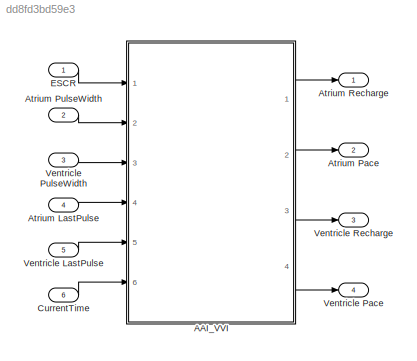
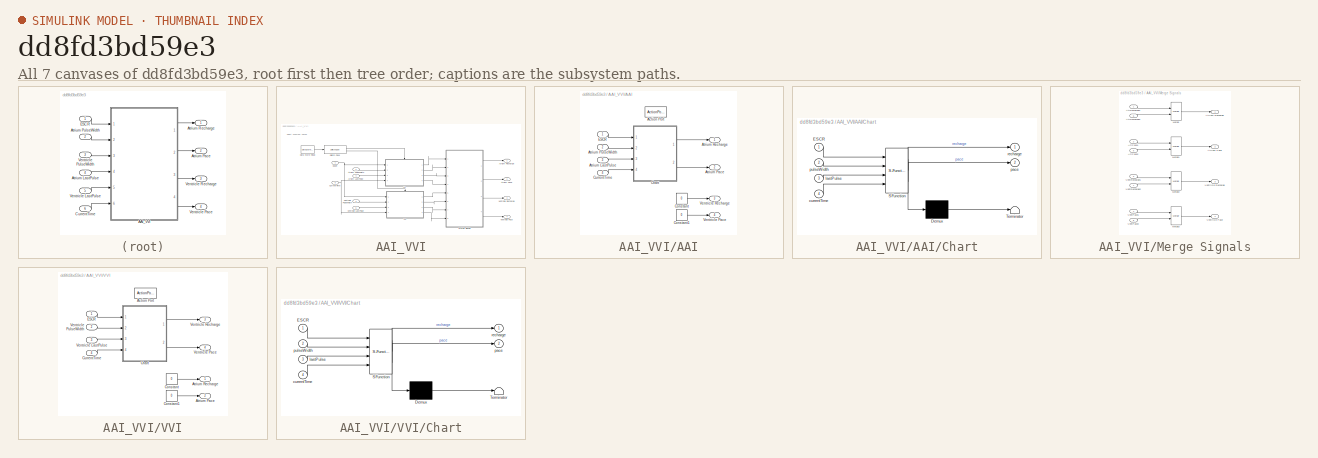
[diagram: thumbnail index - all 7 canvases of the model, root first then tree order]
MODEL slx_dd8fd3bd59e3
KIND model
CONFIG AbsTol = auto
CONFIG EnableMultiTasking = on
CONFIG FixedStep = 1e-3
CONFIG MaxStep = auto
CONFIG MinStep = auto
CONFIG RelTol = 1e-3
CONFIG SampleTimeConstraint = Unconstrained
CONFIG Solver = FixedStepAuto
CONFIG SolverName = FixedStepAuto
CONFIG StartTime = 0.0
CONFIG StopTime = 10.0
BLOCK [SubSystem] AAI_VVI
  Ports = [6, 4]
  RequestExecContextInheritance = off
BLOCK [SubSystem] AAI_VVI/AAI
  Ports = [4, 4, 0, 0, 0, 0, 0, 1]
  RequestExecContextInheritance = off
  VariantControl = ATR_PACING
BLOCK [ActionPort] AAI_VVI/AAI/Action Port
  ActionPortLabel = case [ 1 ]:
BLOCK [Inport] AAI_VVI/AAI/Atrium LastPulse
  Port = 3
BLOCK [Outport] AAI_VVI/AAI/Atrium Pace
  Port = 2
BLOCK [Inport] AAI_VVI/AAI/Atrium PulseWidth
  Port = 2
BLOCK [Outport] AAI_VVI/AAI/Atrium Recharge
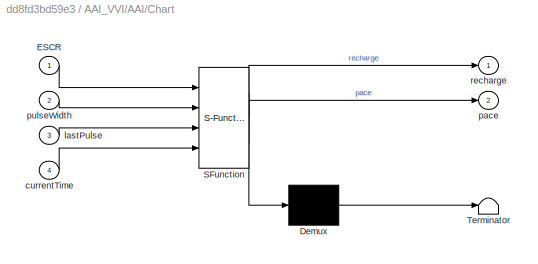
BLOCK [SubSystem] AAI_VVI/AAI/Chart
  ErrorFcn = Stateflow.Translate.translate
  PermitHierarchicalResolution = ExplicitOnly
  Ports = [4, 2]
  RequestExecContextInheritance = off
  SFBlockType = Chart
  TreatAsAtomicUnit = on
BLOCK [Demux] AAI_VVI/AAI/Chart/ Demux 
  Outputs = 1
  Ports = [1, 1]
BLOCK [S-Function] AAI_VVI/AAI/Chart/ SFunction 
  EnableBusSupport = on
  FunctionName = sf_sfun
  PortCounts = [4 3]
  Ports = [4, 3]
  SFcnIsStateOwnerBlock = off
  SFunctionDeploymentMode = off
  Tag = Stateflow S-Function 2
BLOCK [Terminator] AAI_VVI/AAI/Chart/ Terminator 
BLOCK [Inport] AAI_VVI/AAI/Chart/ESCR
BLOCK [Inport] AAI_VVI/AAI/Chart/currentTime
  Port = 4
BLOCK [Inport] AAI_VVI/AAI/Chart/lastPulse
  Port = 3
BLOCK [Outport] AAI_VVI/AAI/Chart/pace
  Port = 2
BLOCK [Inport] AAI_VVI/AAI/Chart/pulseWidth
  Port = 2
BLOCK [Outport] AAI_VVI/AAI/Chart/recharge
BLOCK [Constant] AAI_VVI/AAI/Constant
  Value = 0
BLOCK [Constant] AAI_VVI/AAI/Constant1
  OutDataTypeStr = boolean
  Value = 0
BLOCK [Inport] AAI_VVI/AAI/CurrentTime
  Port = 4
BLOCK [Inport] AAI_VVI/AAI/ESCR
BLOCK [Outport] AAI_VVI/AAI/Ventricle Pace
  Port = 4
BLOCK [Outport] AAI_VVI/AAI/Ventricle Recharge
  Port = 3
BLOCK [Inport] AAI_VVI/Atrium LastPulse
  Port = 4
BLOCK [Outport] AAI_VVI/Atrium Pace
  Port = 2
BLOCK [Inport] AAI_VVI/Atrium PulseWidth
  Port = 2
BLOCK [Outport] AAI_VVI/Atrium Recharge
BLOCK [Inport] AAI_VVI/CurrentTime
  Port = 6
BLOCK [DataStoreRead] AAI_VVI/Data Store Read
  DataStoreName = Paced
  Ports = [0, 1]
BLOCK [Inport] AAI_VVI/ESCR
BLOCK [SubSystem] AAI_VVI/Merge Signals
  Ports = [8, 4]
  RequestExecContextInheritance = off
BLOCK [Inport] AAI_VVI/Merge Signals/AtrPace1
  Port = 2
BLOCK [Inport] AAI_VVI/Merge Signals/AtrPace2
  Port = 6
BLOCK [Inport] AAI_VVI/Merge Signals/AtrRecharge1
BLOCK [Inport] AAI_VVI/Merge Signals/AtrRecharge2
  Port = 5
BLOCK [Outport] AAI_VVI/Merge Signals/Atrium Pace
  Port = 2
BLOCK [Outport] AAI_VVI/Merge Signals/Atrium Recharge
BLOCK [Merge] AAI_VVI/Merge Signals/Merge
  Ports = [2, 1]
BLOCK [Merge] AAI_VVI/Merge Signals/Merge1
  Ports = [2, 1]
BLOCK [Merge] AAI_VVI/Merge Signals/Merge2
  Ports = [2, 1]
BLOCK [Merge] AAI_VVI/Merge Signals/Merge3
  Ports = [2, 1]
BLOCK [Inport] AAI_VVI/Merge Signals/VentPace1
  Port = 4
BLOCK [Inport] AAI_VVI/Merge Signals/VentPace2
  Port = 8
BLOCK [Inport] AAI_VVI/Merge Signals/VentRecharge1
  Port = 3
BLOCK [Inport] AAI_VVI/Merge Signals/VentRecharge2
  Port = 7
BLOCK [Outport] AAI_VVI/Merge Signals/Ventricle Pace
  Port = 4
BLOCK [Outport] AAI_VVI/Merge Signals/Ventricle Recharge
  Port = 3
BLOCK [SwitchCase] AAI_VVI/Switch Case
  CaseConditions = {1,2}
  Ports = [1, 2]
  ShowDefaultCase = off
BLOCK [SubSystem] AAI_VVI/VVI
  Ports = [4, 4, 0, 0, 0, 0, 0, 1]
  RequestExecContextInheritance = off
  VariantControl = VENT_PACING
BLOCK [ActionPort] AAI_VVI/VVI/Action Port
  ActionPortLabel = case [ 2 ]:
BLOCK [Outport] AAI_VVI/VVI/Atrium Pace
  Port = 2
BLOCK [Outport] AAI_VVI/VVI/Atrium Recharge
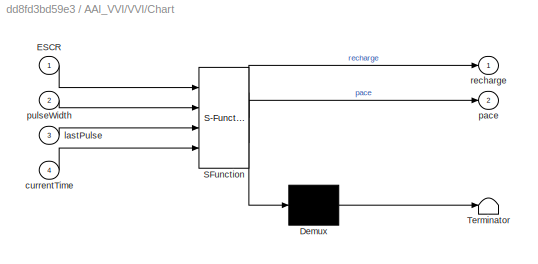
BLOCK [SubSystem] AAI_VVI/VVI/Chart
  ErrorFcn = Stateflow.Translate.translate
  PermitHierarchicalResolution = ExplicitOnly
  Ports = [4, 2]
  RequestExecContextInheritance = off
  SFBlockType = Chart
  TreatAsAtomicUnit = on
BLOCK [Demux] AAI_VVI/VVI/Chart/ Demux 
  Outputs = 1
  Ports = [1, 1]
BLOCK [S-Function] AAI_VVI/VVI/Chart/ SFunction 
  EnableBusSupport = on
  FunctionName = sf_sfun
  PortCounts = [4 3]
  Ports = [4, 3]
  SFcnIsStateOwnerBlock = off
  SFunctionDeploymentMode = off
  Tag = Stateflow S-Function 4
BLOCK [Terminator] AAI_VVI/VVI/Chart/ Terminator 
BLOCK [Inport] AAI_VVI/VVI/Chart/ESCR
BLOCK [Inport] AAI_VVI/VVI/Chart/currentTime
  Port = 4
BLOCK [Inport] AAI_VVI/VVI/Chart/lastPulse
  Port = 3
BLOCK [Outport] AAI_VVI/VVI/Chart/pace
  Port = 2
BLOCK [Inport] AAI_VVI/VVI/Chart/pulseWidth
  Port = 2
BLOCK [Outport] AAI_VVI/VVI/Chart/recharge
BLOCK [Constant] AAI_VVI/VVI/Constant
  Value = 0
BLOCK [Constant] AAI_VVI/VVI/Constant1
  OutDataTypeStr = boolean
  Value = 0
BLOCK [Inport] AAI_VVI/VVI/CurrentTime
  Port = 4
BLOCK [Inport] AAI_VVI/VVI/ESCR
BLOCK [Inport] AAI_VVI/VVI/Ventricle LastPulse
  Port = 3
BLOCK [Outport] AAI_VVI/VVI/Ventricle Pace
  Port = 4
BLOCK [Inport] AAI_VVI/VVI/Ventricle PulseWidth
  Port = 2
BLOCK [Outport] AAI_VVI/VVI/Ventricle Recharge
  Port = 3
BLOCK [Inport] AAI_VVI/Ventricle LastPulse
  Port = 5
BLOCK [Outport] AAI_VVI/Ventricle Pace
  Port = 4
BLOCK [Inport] AAI_VVI/Ventricle PulseWidth 
  Port = 3
BLOCK [Outport] AAI_VVI/Ventricle Recharge
  Port = 3
BLOCK [Inport] Atrium LastPulse
  Port = 4
BLOCK [Outport] Atrium Pace
  Port = 2
BLOCK [Inport] Atrium PulseWidth
  OutDataTypeStr = uint16
  Port = 2
BLOCK [Outport] Atrium Recharge
BLOCK [Inport] CurrentTime
  Port = 6
BLOCK [Inport] ESCR
  OutDataTypeStr = uint16
BLOCK [Inport] Ventricle LastPulse
  Port = 5
BLOCK [Outport] Ventricle Pace
  Port = 4
BLOCK [Inport] Ventricle PulseWidth 
  OutDataTypeStr = uint16
  Port = 3
BLOCK [Outport] Ventricle Recharge
  Port = 3
ANNOTATION AAI_VVI: Select Chamber Paced
LINE AAI_VVI/AAI/Atrium LastPulse:1 -> AAI_VVI/AAI/Chart:3
LINE AAI_VVI/AAI/Atrium PulseWidth:1 -> AAI_VVI/AAI/Chart:2
LINE AAI_VVI/AAI/Chart:1 -> AAI_VVI/AAI/Atrium Recharge:1
LINE AAI_VVI/AAI/Chart:2 -> AAI_VVI/AAI/Atrium Pace:1
LINE AAI_VVI/AAI/Constant1:1 -> AAI_VVI/AAI/Ventricle Pace:1
LINE AAI_VVI/AAI/Constant:1 -> AAI_VVI/AAI/Ventricle Recharge:1
LINE AAI_VVI/AAI/CurrentTime:1 -> AAI_VVI/AAI/Chart:4
LINE AAI_VVI/AAI/ESCR:1 -> AAI_VVI/AAI/Chart:1
LINE AAI_VVI/AAI:1 -> AAI_VVI/Merge Signals:1
LINE AAI_VVI/AAI:2 -> AAI_VVI/Merge Signals:2
LINE AAI_VVI/AAI:3 -> AAI_VVI/Merge Signals:3
LINE AAI_VVI/AAI:4 -> AAI_VVI/Merge Signals:4
LINE AAI_VVI/Atrium LastPulse:1 -> AAI_VVI/AAI:3
LINE AAI_VVI/Atrium PulseWidth:1 -> AAI_VVI/AAI:2
NET AAI_VVI/CurrentTime:1 -> AAI_VVI/AAI:4, AAI_VVI/VVI:4
LINE AAI_VVI/Data Store Read:1 -> AAI_VVI/Switch Case:1
NET AAI_VVI/ESCR:1 -> AAI_VVI/AAI:1, AAI_VVI/VVI:1
LINE AAI_VVI/Merge Signals/AtrPace1:1 -> AAI_VVI/Merge Signals/Merge1:1
LINE AAI_VVI/Merge Signals/AtrPace2:1 -> AAI_VVI/Merge Signals/Merge1:2
LINE AAI_VVI/Merge Signals/AtrRecharge1:1 -> AAI_VVI/Merge Signals/Merge:1
LINE AAI_VVI/Merge Signals/AtrRecharge2:1 -> AAI_VVI/Merge Signals/Merge:2
LINE AAI_VVI/Merge Signals/Merge1:1 -> AAI_VVI/Merge Signals/Atrium Pace:1
LINE AAI_VVI/Merge Signals/Merge2:1 -> AAI_VVI/Merge Signals/Ventricle Recharge:1
LINE AAI_VVI/Merge Signals/Merge3:1 -> AAI_VVI/Merge Signals/Ventricle Pace:1
LINE AAI_VVI/Merge Signals/Merge:1 -> AAI_VVI/Merge Signals/Atrium Recharge:1
LINE AAI_VVI/Merge Signals/VentPace1:1 -> AAI_VVI/Merge Signals/Merge3:1
LINE AAI_VVI/Merge Signals/VentPace2:1 -> AAI_VVI/Merge Signals/Merge3:2
LINE AAI_VVI/Merge Signals/VentRecharge1:1 -> AAI_VVI/Merge Signals/Merge2:1
LINE AAI_VVI/Merge Signals/VentRecharge2:1 -> AAI_VVI/Merge Signals/Merge2:2
LINE AAI_VVI/Merge Signals:1 -> AAI_VVI/Atrium Recharge:1
LINE AAI_VVI/Merge Signals:2 -> AAI_VVI/Atrium Pace:1
LINE AAI_VVI/Merge Signals:3 -> AAI_VVI/Ventricle Recharge:1
LINE AAI_VVI/Merge Signals:4 -> AAI_VVI/Ventricle Pace:1
LINE AAI_VVI/Switch Case:1 -> AAI_VVI/AAI:ifaction
LINE AAI_VVI/Switch Case:2 -> AAI_VVI/VVI:ifaction
LINE AAI_VVI/VVI/Chart:1 -> AAI_VVI/VVI/Ventricle Recharge:1
LINE AAI_VVI/VVI/Chart:2 -> AAI_VVI/VVI/Ventricle Pace:1
LINE AAI_VVI/VVI/Constant1:1 -> AAI_VVI/VVI/Atrium Pace:1
LINE AAI_VVI/VVI/Constant:1 -> AAI_VVI/VVI/Atrium Recharge:1
LINE AAI_VVI/VVI/CurrentTime:1 -> AAI_VVI/VVI/Chart:4
LINE AAI_VVI/VVI/ESCR:1 -> AAI_VVI/VVI/Chart:1
LINE AAI_VVI/VVI/Ventricle LastPulse:1 -> AAI_VVI/VVI/Chart:3
LINE AAI_VVI/VVI/Ventricle PulseWidth:1 -> AAI_VVI/VVI/Chart:2
LINE AAI_VVI/VVI:1 -> AAI_VVI/Merge Signals:5
LINE AAI_VVI/VVI:2 -> AAI_VVI/Merge Signals:6
LINE AAI_VVI/VVI:3 -> AAI_VVI/Merge Signals:7
LINE AAI_VVI/VVI:4 -> AAI_VVI/Merge Signals:8
LINE AAI_VVI/Ventricle LastPulse:1 -> AAI_VVI/VVI:3
LINE AAI_VVI/Ventricle PulseWidth :1 -> AAI_VVI/VVI:2
LINE AAI_VVI:1 -> Atrium Recharge:1
LINE AAI_VVI:2 -> Atrium Pace:1
LINE AAI_VVI:3 -> Ventricle Recharge:1
LINE AAI_VVI:4 -> Ventricle Pace:1
LINE Atrium LastPulse:1 -> AAI_VVI:4
LINE Atrium PulseWidth:1 -> AAI_VVI:2
LINE CurrentTime:1 -> AAI_VVI:6
LINE ESCR:1 -> AAI_VVI:1
LINE Ventricle LastPulse:1 -> AAI_VVI:5
LINE Ventricle PulseWidth :1 -> AAI_VVI:3
note: NET lines group one-source signal fan-out (src -> all destinations, sorted); 1:1 wires keep LINE
CHART AAI_VVI/AAI/Chart states=7 transitions=4
  STATE_LABEL 'Recharge phase split into two to\nensure correct pin activation order.'
  STATE_LABEL 'Starts charging of C22\nand discharging of C21.'
  STATE_LABEL 'Recharge_Init\nentry:\npace = false;\nrecharge = 1;'
  STATE_LABEL 'Recharge\nentry:\nrecharge = 2;'
  STATE_LABEL 'Sets up for charging C22\nand discharging C21.'
  STATE_LABEL 'Pace\nentry:\npace = true;\nrecharge = 0;'
  STATE_LABEL 'Paces the heart by discharging\nC22 into the heart.'
CHART AAI_VVI/VVI/Chart states=7 transitions=4
  STATE_LABEL 'Recharge phase split into two to\nensure correct pin activation order.'
  STATE_LABEL 'Starts charging of C22\nand discharging of C21.'
  STATE_LABEL 'Recharge_Init\nentry:\npace = false;\nrecharge = 1;'
  STATE_LABEL 'Recharge\nentry:\nrecharge = 2;'
  STATE_LABEL 'Sets up for charging C22\nand discharging C21.'
  STATE_LABEL 'Pace\nentry:\npace = true;\nrecharge = 0;'
  STATE_LABEL 'Paces the heart by discharging\nC22 into the heart.'
CHART  states=0 transitions=0
CHART  states=0 transitions=0
